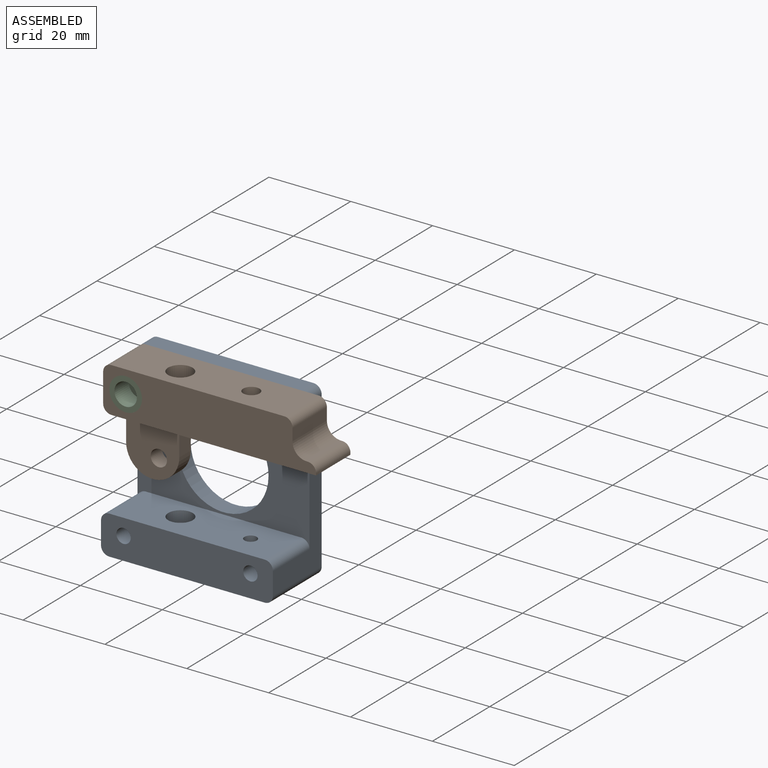
[diagram: assembled view]
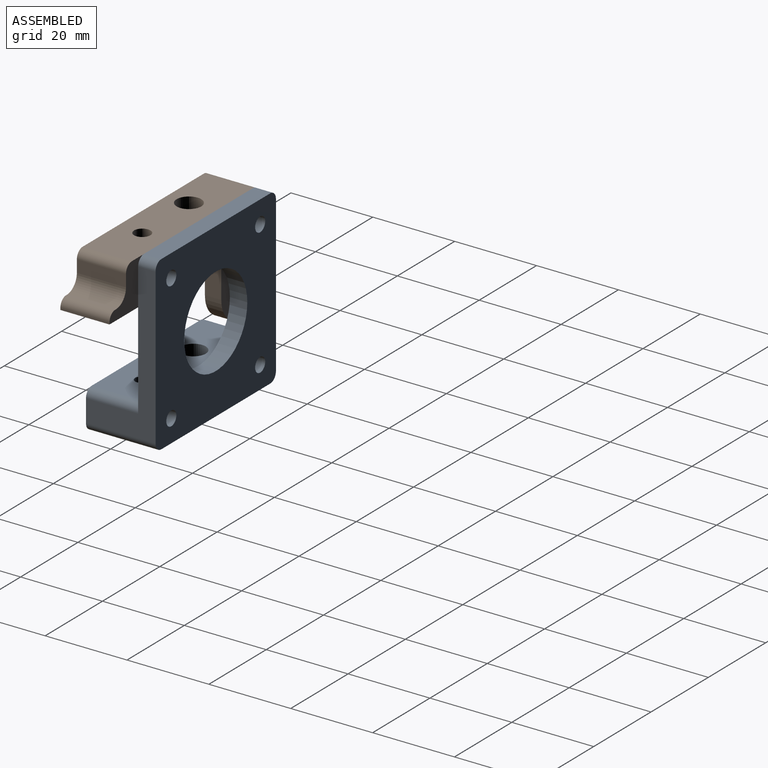
[diagram: assembled view, second angle]
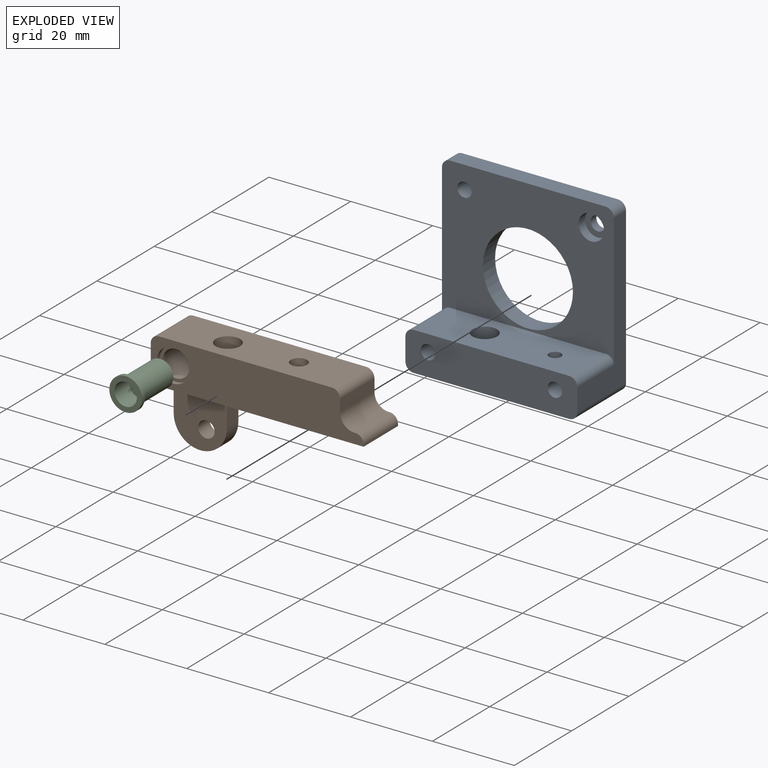
[diagram: exploded view]
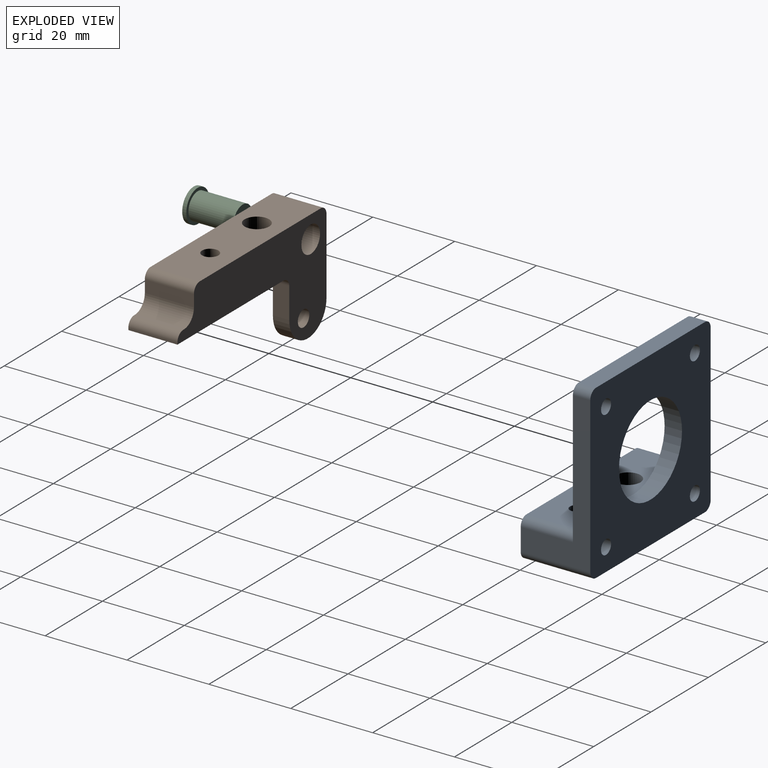
[diagram: exploded view, second angle]
ASSEMBLY  parts=3 mates=2
PART A: 23 faces, bbox 42x17x42 mm
  f0: plane 38x17mm, normal (-1,0,0), area 231.6mm2, adj f6,f7,f12,f19,f20,f21
  f1: plane 38x4.25mm, normal (0,0,1), area 161.5mm2, adj f6,f7,f21,f22
  f2: plane 38x17mm, normal (1,0,0), area 231.6mm2, adj f6,f7,f12,f17,f18,f22
  f3: cylinder r=11mm len=22mm, axis (0,1,0), area 293.7mm2, adj f6,f7
  f4: cylinder r=1.75mm len=4.25mm, axis (0,1,0), area 46.7mm2, adj f6,f7
  f5: cylinder r=3.12mm len=6.25mm, axis (0,1,0), area 44.2mm2, adj f6,f14
  f6: plane 42x34.5mm, normal (0,-1,0), area 944.6mm2, adj f0,f1,f2,f3,f4,f5,f8,f17
  f7: plane 42x42mm, normal (0,1,0), area 1341.9mm2, adj f0,f1,f2,f3,f4,f9,f10,f11
  f8: plane 38x12.75mm, normal (0,0,1), area 449.2mm2, adj f6,f12,f15,f16,f17,f20
  f9: plane 38x17mm, normal (0,0,-1), area 610.7mm2, adj f7,f12,f15,f16,f18,f19
  f10: cylinder r=1.75mm len=17mm, axis (0,1,0), area 186.9mm2, adj f7,f12
  f11: cylinder r=1.75mm len=17mm, axis (0,1,0), area 186.9mm2, adj f7,f12
  f12: plane 42x9.5mm, normal (0,-1,0), area 376.3mm2, adj f0,f2,f8,f9,f10,f11,f17,f18
  f13: cylinder r=1.75mm len=3.5mm, axis (0,1,0), area 22mm2, adj f7,f14
  f14: plane 6.25x6.25mm, normal (0,-1,0), area 21.1mm2, adj f5,f13
  f15: cylinder r=1.5mm len=9.5mm, axis (0,0,-1), area 89.5mm2, adj f8,f9
  f16: cylinder r=3mm len=9.5mm, axis (0,0,-1), area 179.1mm2, adj f8,f9
  f17: cylinder r=2mm len=12.75mm, axis (0,1,0), area 40.1mm2, adj f2,f6,f8,f12
  f18: cylinder r=2mm len=17mm, axis (0,1,0), area 53.4mm2, adj f2,f7,f9,f12
  f19: cylinder r=2mm len=17mm, axis (0,-1,0), area 53.4mm2, adj f0,f7,f9,f12
  f20: cylinder r=2mm len=12.75mm, axis (0,-1,0), area 40.1mm2, adj f0,f6,f8,f12
  f21: cylinder r=2mm len=4.25mm, axis (0,1,0), area 13.4mm2, adj f0,f1,f6,f7
  f22: cylinder r=2mm len=4.25mm, axis (0,-1,0), area 13.4mm2, adj f1,f2,f6,f7
PART B: 25 faces, bbox 52x12x27 mm
  f0: plane 42.25x12mm, normal (0,0,1), area 466.2mm2, adj f8,f9,f18,f19,f22,f23
  f1: plane 50x12mm, normal (0,0,-1), area 525.8mm2, adj f7,f8,f9,f15,f16,f17,f21,f22
  f2: plane 18.5x12mm, normal (-1,0,0), area 130mm2, adj f8,f9,f13,f15,f17,f18
  f3: plane 12x3mm, normal (1,0,0), area 36mm2, adj f4,f8,f9,f19
  f4: cylinder r=3.5mm len=12mm, axis (0,1,0), area 66mm2, adj f3,f5,f8,f9
  f5: plane 12x0.25mm, normal (0,0,1), area 3mm2, adj f4,f8,f9,f20
  f6: cylinder r=4mm len=8mm, axis (0,1,0), area 25.1mm2, adj f8,f11
  f7: plane 12x0.5mm, normal (1,0,0), area 6mm2, adj f1,f8,f9,f20
  f8: plane 52x11mm, normal (0,-1,0), area 472.1mm2, adj f0,f1,f2,f3,f4,f5,f6,f7
  f9: plane 52x27mm, normal (0,1,0), area 668.2mm2, adj f0,f1,f2,f3,f4,f5,f7,f10
  f10: cylinder r=3.25mm len=11mm, axis (0,1,0), area 224.6mm2, adj f9,f11
  f11: plane 8x8mm, normal (0,-1,0), area 17.1mm2, adj f6,f10
  f12: plane 7.5x4mm, normal (1,0,0), area 30mm2, adj f9,f13,f15,f16
  f13: cylinder r=6.5mm len=13mm, axis (0,1,0), area 81.7mm2, adj f2,f9,f12,f15
  f14: cylinder r=2mm len=4mm, axis (0,1,0), area 50.3mm2, adj f9,f15
  f15: plane 18x15mm, normal (0,-1,0), area 179mm2, adj f1,f2,f12,f13,f14,f16,f17
  f16: cylinder r=2mm len=4mm, axis (0,-1,0), area 12.6mm2, adj f1,f9,f12,f15
  f17: cylinder r=2mm len=8mm, axis (0,1,0), area 25.1mm2, adj f1,f2,f8,f15
  f18: cylinder r=2mm len=12mm, axis (0,1,0), area 37.7mm2, adj f0,f2,f8,f9
  f19: cylinder r=2mm len=12mm, axis (0,-1,0), area 37.7mm2, adj f0,f3,f8,f9
  f20: cylinder r=2mm len=12mm, axis (0,1,0), area 37.7mm2, adj f5,f7,f8,f9
  f21: cylinder r=1.75mm len=3.5mm, axis (0,0,1), area 11mm2, adj f1,f24
  f22: cylinder r=2mm len=11mm, axis (0,0,1), area 138.2mm2, adj f0,f1
  f23: cylinder r=3mm len=10mm, axis (0,0,1), area 188.5mm2, adj f0,f24
  f24: plane 6x6mm, normal (0,0,1), area 18.7mm2, adj f21,f23
PART C: 8 faces, bbox 8x12x8 mm
  f0: cylinder r=4mm len=8mm, axis (0,-1,0), area 25.1mm2, adj f1,f2
  f1: plane 8x8mm, normal (0,1,0), area 17.1mm2, adj f0,f3
  f2: plane 8x8mm, normal (0,-1,0), area 26.5mm2, adj f0,f6
  f3: cylinder r=3.25mm len=11mm, axis (0,-1,0), area 224.6mm2, adj f1,f5
  f4: cylinder r=1.75mm len=7mm, axis (0,-1,0), area 77mm2, adj f5,f7
  f5: plane 6.5x6.5mm, normal (0,1,0), area 23.6mm2, adj f3,f4
  f6: cylinder r=2.75mm len=5.5mm, axis (0,-1,0), area 86.4mm2, adj f2,f7
  f7: plane 5.5x5.5mm, normal (0,-1,0), area 14.1mm2, adj f4,f6
PLACE A t=(-54.84,9.68,4.23)mm
PLACE B t=(-54.84,9.68,4.23)mm
PLACE C t=(-33.84,9.68,4.23)mm
MATE fastened C.f0 <-> A.f4  axis (0,1,0) through (-18.34,5.43,19.73)mm
MATE revolute B.f6 <-> C.f0  axis (0,-1,0) through (-18.34,-6.57,19.73)mm
